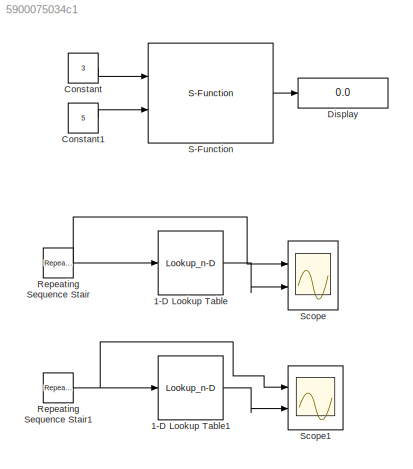
MODEL slx_5900075034c1
KIND model
CONFIG AbsTol = auto
CONFIG EnableMultiTasking = off
CONFIG FixedStep = 1
CONFIG MaxStep = auto
CONFIG MinStep = auto
CONFIG RelTol = 1e-3
CONFIG SampleTimeConstraint = Unconstrained
CONFIG Solver = FixedStepAuto
CONFIG SolverName = FixedStepAuto
CONFIG StartTime = 0.0
CONFIG StopTime = 8
BLOCK [Lookup_n-D] 1-D Lookup Table
  BreakpointsForDimension1 = [0.5:0.04:4.5]
  InternalRulePriority = Speed
  NumberOfTableDimensions = 1
  Ports = [1, 1]
  RndMeth = Simplest
  Table = [0:1:100]
BLOCK [Lookup_n-D] 1-D Lookup Table1
  BreakpointsForDimension1 = VarName2
  InternalRulePriority = Speed
  NumberOfTableDimensions = 1
  Ports = [1, 1]
  RndMeth = Simplest
  Table = VarName1
BLOCK [Constant] Constant
  Value = 3
BLOCK [Constant] Constant1
  Value = 5
BLOCK [Display] Display
  Decimation = 2
  Ports = [1]
BLOCK [Reference] Repeating Sequence Stair  REF=simulink/Sources/Repeating
Sequence
Stair
  Ports = [0, 1]
  SourceBlock = simulink/Sources/Repeating\nSequence\nStair
  SourceProductBaseCode = SL
  SourceProductName = Simulink
  SourceType = Repeating Sequence Stair
BLOCK [Reference] Repeating Sequence Stair1  REF=simulink/Sources/Repeating
Sequence
Stair
  Ports = [0, 1]
  SourceBlock = simulink/Sources/Repeating\nSequence\nStair
  SourceProductBaseCode = SL
  SourceProductName = Simulink
  SourceType = Repeating Sequence Stair
BLOCK [S-Function] S-Function
  EnableBusSupport = off
  FunctionName = new_s_function
  Ports = [2, 1]
  SFcnIsStateOwnerBlock = off
  SFunctionDeploymentMode = off
BLOCK [Scope] Scope
  Floating = off
  NumInputPorts = 2
  Ports = [2]
  ScopeSpecificationString = Simulink.scopes.TimeScopeBlockCfg('CurrentConfiguration', extmgr.ConfigurationSet(extmgr.Configuration('Core','General UI',true),extmgr.Configuration('Core','Source UI',true),extmgr.Configuration('Sources','WiredSimulink',true),extmgr.Configuration('Visuals','Time Domain',true,'SerializedDisplays',{struct('MinYLimReal','0.0625','MaxYLimReal','4.4375','YLabelReal','','MinYLimMag','0.0625','MaxYLimM...<+2063ch>
BLOCK [Scope] Scope1
  Floating = off
  NumInputPorts = 2
  Ports = [2]
  ScopeSpecificationString = Simulink.scopes.TimeScopeBlockCfg('CurrentConfiguration', extmgr.ConfigurationSet(extmgr.Configuration('Core','General UI',true),extmgr.Configuration('Core','Source UI',true),extmgr.Configuration('Sources','WiredSimulink',true,'DataLoggingVariableName','ScopeData1'),extmgr.Configuration('Visuals','Time Domain',true,'SerializedDisplays',{struct('MinYLimReal','0.0625','MaxYLimReal','4.4375','YLabelR...<+1998ch>
LINE 1-D Lookup Table1:1 -> Scope1:2
LINE 1-D Lookup Table:1 -> Scope:2
LINE Constant1:1 -> S-Function:2
LINE Constant:1 -> S-Function:1
NET Repeating Sequence Stair1:1 -> 1-D Lookup Table1:1, Scope1:1
NET Repeating Sequence Stair:1 -> 1-D Lookup Table:1, Scope:1
LINE S-Function:1 -> Display:1
note: NET lines group one-source signal fan-out (src -> all destinations, sorted); 1:1 wires keep LINE
